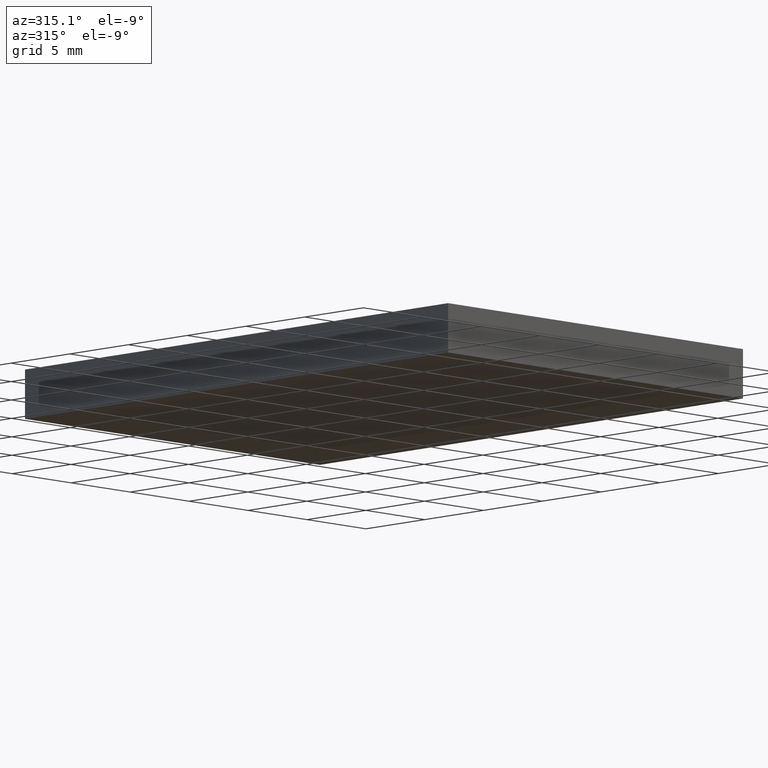
[diagram: clean part render]
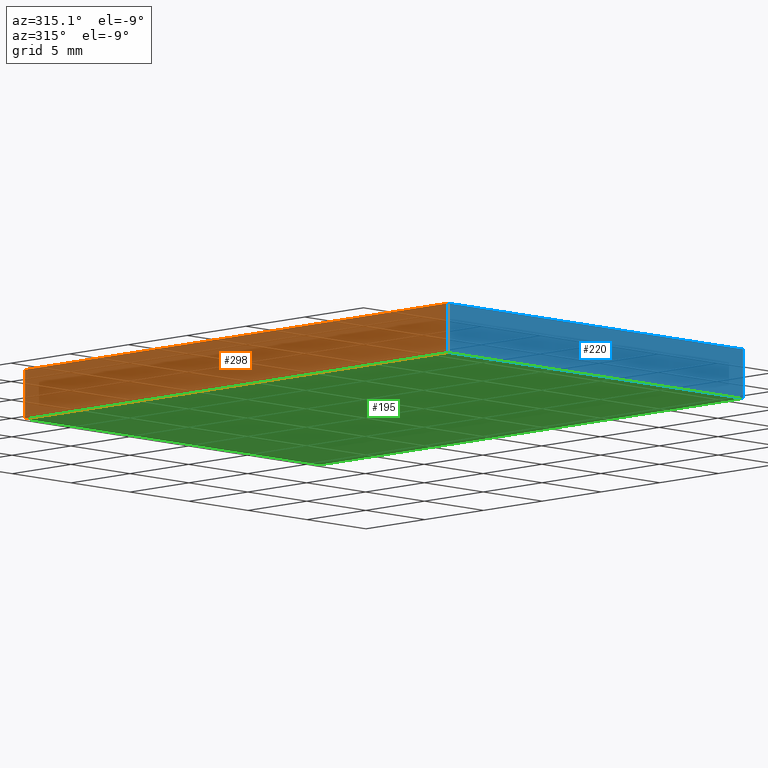
[diagram: same view with three faces highlighted in distinct colors, each labeled with its STEP entity id]
A machine part, auxiliary view with three faces highlighted in distinct colors.
Their STEP definitions:

[orange] entity #298 — the highlighted planar face has unit normal (1, 0, -0).
#12 = CARTESIAN_POINT ( 'NONE',  ( -6.351626016260162500, 7.520325203252024700, 3.000000000000000000 ) ) ;
#20 = VERTEX_POINT ( 'NONE', #12 ) ;
#24 = ORIENTED_EDGE ( 'NONE', *, *, #254, .F. ) ;
#26 = EDGE_CURVE ( 'NONE', #20, #49, #117, .T. ) ;
#49 = VERTEX_POINT ( 'NONE', #264 ) ;
#55 = VECTOR ( 'NONE', #198, 1000.000000000000000 ) ;
#64 = EDGE_LOOP ( 'NONE', ( #94, #24, #301, #208 ) ) ;
#68 = FACE_OUTER_BOUND ( 'NONE', #64, .T. ) ;
#89 = CARTESIAN_POINT ( 'NONE',  ( -6.351626016260158100, -28.47967479674797200, 3.000000000000000000 ) ) ;
#94 = ORIENTED_EDGE ( 'NONE', *, *, #135, .T. ) ;
#100 = CARTESIAN_POINT ( 'NONE',  ( -6.351626016260162500, 7.520325203252024700, 3.000000000000000000 ) ) ;
#106 = DIRECTION ( 'NONE',  ( -0.0000000000000000000, -0.0000000000000000000, -1.000000000000000000 ) ) ;
#107 = LINE ( 'NONE', #231, #221 ) ;
#109 = PLANE ( 'NONE',  #223 ) ;
#117 = LINE ( 'NONE', #100, #219 ) ;
#130 = DIRECTION ( 'NONE',  ( 1.204669080539449300E-016, -1.000000000000000000, 0.0000000000000000000 ) ) ;
#135 = EDGE_CURVE ( 'NONE', #49, #283, #212, .T. ) ;
#152 = CARTESIAN_POINT ( 'NONE',  ( -6.351626016260158100, -28.47967479674797200, 3.000000000000000000 ) ) ;
#156 = DIRECTION ( 'NONE',  ( 1.000000000000000000, 1.204669080539449300E-016, -0.0000000000000000000 ) ) ;
#170 = VECTOR ( 'NONE', #106, 1000.000000000000000 ) ;
#183 = DIRECTION ( 'NONE',  ( -1.204669080539449300E-016, 1.000000000000000000, 0.0000000000000000000 ) ) ;
#191 = CARTESIAN_POINT ( 'NONE',  ( -6.351626016260162500, 7.520325203252024700, 0.0000000000000000000 ) ) ;
#198 = DIRECTION ( 'NONE',  ( 1.204669080539449300E-016, -1.000000000000000000, 0.0000000000000000000 ) ) ;
#203 = CARTESIAN_POINT ( 'NONE',  ( -6.351626016260158100, -28.47967479674797200, 0.0000000000000000000 ) ) ;
#208 = ORIENTED_EDGE ( 'NONE', *, *, #26, .T. ) ;
#212 = LINE ( 'NONE', #191, #55 ) ;
#219 = VECTOR ( 'NONE', #305, 1000.000000000000000 ) ;
#221 = VECTOR ( 'NONE', #130, 1000.000000000000000 ) ;
#223 = AXIS2_PLACEMENT_3D ( 'NONE', #310, #156, #183 ) ;
#231 = CARTESIAN_POINT ( 'NONE',  ( -6.351626016260162500, 7.520325203252024700, 3.000000000000000000 ) ) ;
#238 = EDGE_CURVE ( 'NONE', #20, #265, #107, .T. ) ;
#240 = LINE ( 'NONE', #152, #170 ) ;
#254 = EDGE_CURVE ( 'NONE', #265, #283, #240, .T. ) ;
#264 = CARTESIAN_POINT ( 'NONE',  ( -6.351626016260162500, 7.520325203252024700, 0.0000000000000000000 ) ) ;
#265 = VERTEX_POINT ( 'NONE', #89 ) ;
#283 = VERTEX_POINT ( 'NONE', #203 ) ;
#298 = ADVANCED_FACE ( 'NONE', ( #68 ), #109, .F. ) ;
#301 = ORIENTED_EDGE ( 'NONE', *, *, #238, .F. ) ;
#305 = DIRECTION ( 'NONE',  ( -0.0000000000000000000, -0.0000000000000000000, -1.000000000000000000 ) ) ;
#310 = CARTESIAN_POINT ( 'NONE',  ( -6.351626016260162500, 7.520325203252024700, 3.000000000000000000 ) ) ;

[blue] entity #220 — the highlighted planar face has unit normal (0, 1, 0).
#38 = CARTESIAN_POINT ( 'NONE',  ( -6.351626016260158100, -28.47967479674797200, 0.0000000000000000000 ) ) ;
#42 = DIRECTION ( 'NONE',  ( 1.000000000000000000, 0.0000000000000000000, 0.0000000000000000000 ) ) ;
#54 = FACE_OUTER_BOUND ( 'NONE', #222, .T. ) ;
#87 = VECTOR ( 'NONE', #124, 1000.000000000000000 ) ;
#89 = CARTESIAN_POINT ( 'NONE',  ( -6.351626016260158100, -28.47967479674797200, 3.000000000000000000 ) ) ;
#106 = DIRECTION ( 'NONE',  ( -0.0000000000000000000, -0.0000000000000000000, -1.000000000000000000 ) ) ;
#108 = VERTEX_POINT ( 'NONE', #237 ) ;
#116 = LINE ( 'NONE', #38, #233 ) ;
#121 = CARTESIAN_POINT ( 'NONE',  ( 18.64837398373984800, -28.47967479674797200, 3.000000000000000000 ) ) ;
#124 = DIRECTION ( 'NONE',  ( -0.0000000000000000000, -0.0000000000000000000, -1.000000000000000000 ) ) ;
#125 = DIRECTION ( 'NONE',  ( 0.0000000000000000000, -0.0000000000000000000, 1.000000000000000000 ) ) ;
#127 = CARTESIAN_POINT ( 'NONE',  ( 18.64837398373984800, -28.47967479674797200, 0.0000000000000000000 ) ) ;
#128 = ORIENTED_EDGE ( 'NONE', *, *, #247, .T. ) ;
#131 = ORIENTED_EDGE ( 'NONE', *, *, #205, .F. ) ;
#145 = CARTESIAN_POINT ( 'NONE',  ( -6.351626016260158100, -28.47967479674797200, 3.000000000000000000 ) ) ;
#147 = ORIENTED_EDGE ( 'NONE', *, *, #150, .F. ) ;
#150 = EDGE_CURVE ( 'NONE', #265, #108, #241, .T. ) ;
#152 = CARTESIAN_POINT ( 'NONE',  ( -6.351626016260158100, -28.47967479674797200, 3.000000000000000000 ) ) ;
#160 = AXIS2_PLACEMENT_3D ( 'NONE', #145, #173, #125 ) ;
#161 = DIRECTION ( 'NONE',  ( 1.000000000000000000, 0.0000000000000000000, 0.0000000000000000000 ) ) ;
#166 = VECTOR ( 'NONE', #161, 1000.000000000000000 ) ;
#170 = VECTOR ( 'NONE', #106, 1000.000000000000000 ) ;
#173 = DIRECTION ( 'NONE',  ( 0.0000000000000000000, 1.000000000000000000, 0.0000000000000000000 ) ) ;
#200 = CARTESIAN_POINT ( 'NONE',  ( -6.351626016260158100, -28.47967479674797200, 3.000000000000000000 ) ) ;
#203 = CARTESIAN_POINT ( 'NONE',  ( -6.351626016260158100, -28.47967479674797200, 0.0000000000000000000 ) ) ;
#205 = EDGE_CURVE ( 'NONE', #108, #246, #288, .T. ) ;
#220 = ADVANCED_FACE ( 'NONE', ( #54 ), #248, .F. ) ;
#222 = EDGE_LOOP ( 'NONE', ( #128, #131, #147, #259 ) ) ;
#233 = VECTOR ( 'NONE', #42, 1000.000000000000000 ) ;
#237 = CARTESIAN_POINT ( 'NONE',  ( 18.64837398373984800, -28.47967479674797200, 3.000000000000000000 ) ) ;
#240 = LINE ( 'NONE', #152, #170 ) ;
#241 = LINE ( 'NONE', #200, #166 ) ;
#246 = VERTEX_POINT ( 'NONE', #127 ) ;
#247 = EDGE_CURVE ( 'NONE', #283, #246, #116, .T. ) ;
#248 = PLANE ( 'NONE',  #160 ) ;
#254 = EDGE_CURVE ( 'NONE', #265, #283, #240, .T. ) ;
#259 = ORIENTED_EDGE ( 'NONE', *, *, #254, .T. ) ;
#265 = VERTEX_POINT ( 'NONE', #89 ) ;
#283 = VERTEX_POINT ( 'NONE', #203 ) ;
#288 = LINE ( 'NONE', #121, #87 ) ;

[green] entity #195 — the highlighted planar face has unit normal (-0, 0, 1).
#36 = FACE_OUTER_BOUND ( 'NONE', #44, .T. ) ;
#38 = CARTESIAN_POINT ( 'NONE',  ( -6.351626016260158100, -28.47967479674797200, 0.0000000000000000000 ) ) ;
#42 = DIRECTION ( 'NONE',  ( 1.000000000000000000, 0.0000000000000000000, 0.0000000000000000000 ) ) ;
#44 = EDGE_LOOP ( 'NONE', ( #199, #190, #143, #201 ) ) ;
#48 = PLANE ( 'NONE',  #165 ) ;
#49 = VERTEX_POINT ( 'NONE', #264 ) ;
#55 = VECTOR ( 'NONE', #198, 1000.000000000000000 ) ;
#58 = DIRECTION ( 'NONE',  ( -1.000000000000000000, -0.0000000000000000000, -0.0000000000000000000 ) ) ;
#71 = CARTESIAN_POINT ( 'NONE',  ( 18.64837398373983700, 7.520325203252024700, 0.0000000000000000000 ) ) ;
#76 = VECTOR ( 'NONE', #242, 1000.000000000000000 ) ;
#82 = LINE ( 'NONE', #71, #76 ) ;
#116 = LINE ( 'NONE', #38, #233 ) ;
#122 = LINE ( 'NONE', #167, #175 ) ;
#127 = CARTESIAN_POINT ( 'NONE',  ( 18.64837398373984800, -28.47967479674797200, 0.0000000000000000000 ) ) ;
#135 = EDGE_CURVE ( 'NONE', #49, #283, #212, .T. ) ;
#143 = ORIENTED_EDGE ( 'NONE', *, *, #163, .F. ) ;
#163 = EDGE_CURVE ( 'NONE', #246, #193, #82, .T. ) ;
#165 = AXIS2_PLACEMENT_3D ( 'NONE', #245, #244, #302 ) ;
#167 = CARTESIAN_POINT ( 'NONE',  ( -6.351626016260162500, 7.520325203252024700, 0.0000000000000000000 ) ) ;
#175 = VECTOR ( 'NONE', #58, 1000.000000000000000 ) ;
#190 = ORIENTED_EDGE ( 'NONE', *, *, #226, .F. ) ;
#191 = CARTESIAN_POINT ( 'NONE',  ( -6.351626016260162500, 7.520325203252024700, 0.0000000000000000000 ) ) ;
#193 = VERTEX_POINT ( 'NONE', #276 ) ;
#195 = ADVANCED_FACE ( 'NONE', ( #36 ), #48, .F. ) ;
#198 = DIRECTION ( 'NONE',  ( 1.204669080539449300E-016, -1.000000000000000000, 0.0000000000000000000 ) ) ;
#199 = ORIENTED_EDGE ( 'NONE', *, *, #135, .F. ) ;
#201 = ORIENTED_EDGE ( 'NONE', *, *, #247, .F. ) ;
#203 = CARTESIAN_POINT ( 'NONE',  ( -6.351626016260158100, -28.47967479674797200, 0.0000000000000000000 ) ) ;
#212 = LINE ( 'NONE', #191, #55 ) ;
#226 = EDGE_CURVE ( 'NONE', #193, #49, #122, .T. ) ;
#233 = VECTOR ( 'NONE', #42, 1000.000000000000000 ) ;
#242 = DIRECTION ( 'NONE',  ( -2.891205793294678800E-016, 1.000000000000000000, -0.0000000000000000000 ) ) ;
#244 = DIRECTION ( 'NONE',  ( -0.0000000000000000000, 0.0000000000000000000, 1.000000000000000000 ) ) ;
#245 = CARTESIAN_POINT ( 'NONE',  ( 0.0000000000000000000, 0.0000000000000000000, 0.0000000000000000000 ) ) ;
#246 = VERTEX_POINT ( 'NONE', #127 ) ;
#247 = EDGE_CURVE ( 'NONE', #283, #246, #116, .T. ) ;
#264 = CARTESIAN_POINT ( 'NONE',  ( -6.351626016260162500, 7.520325203252024700, 0.0000000000000000000 ) ) ;
#276 = CARTESIAN_POINT ( 'NONE',  ( 18.64837398373983700, 7.520325203252024700, 0.0000000000000000000 ) ) ;
#283 = VERTEX_POINT ( 'NONE', #203 ) ;
#302 = DIRECTION ( 'NONE',  ( 1.000000000000000000, 0.0000000000000000000, 0.0000000000000000000 ) ) ;